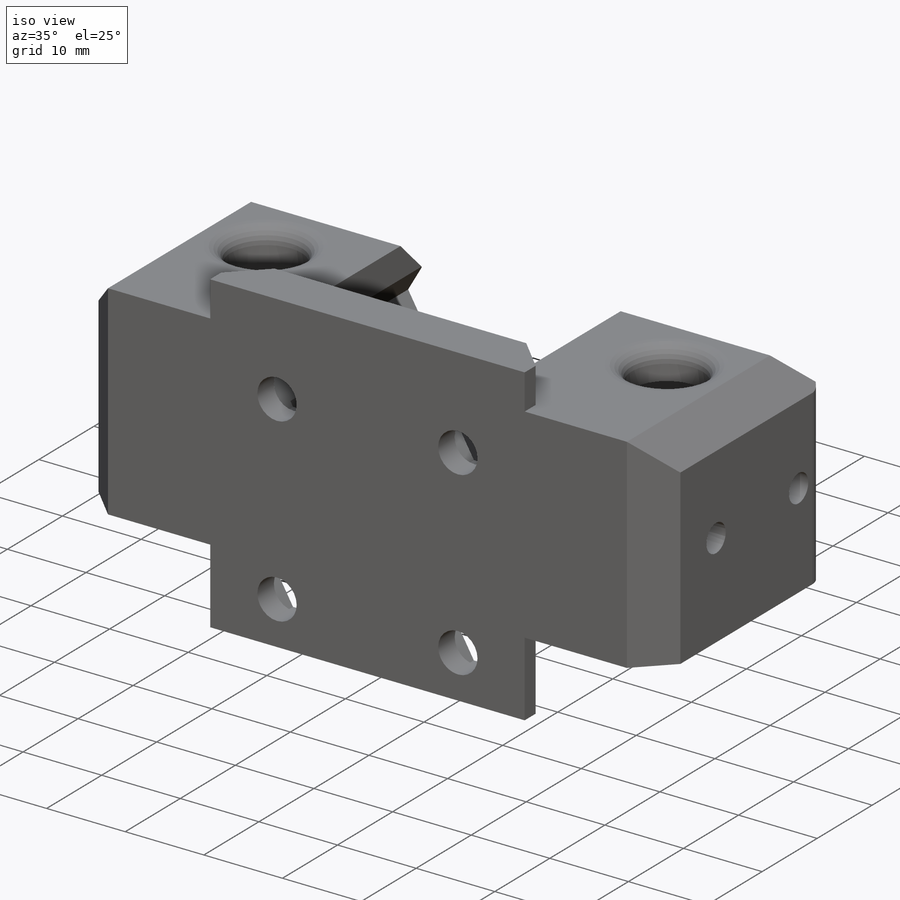
[diagram: iso view]
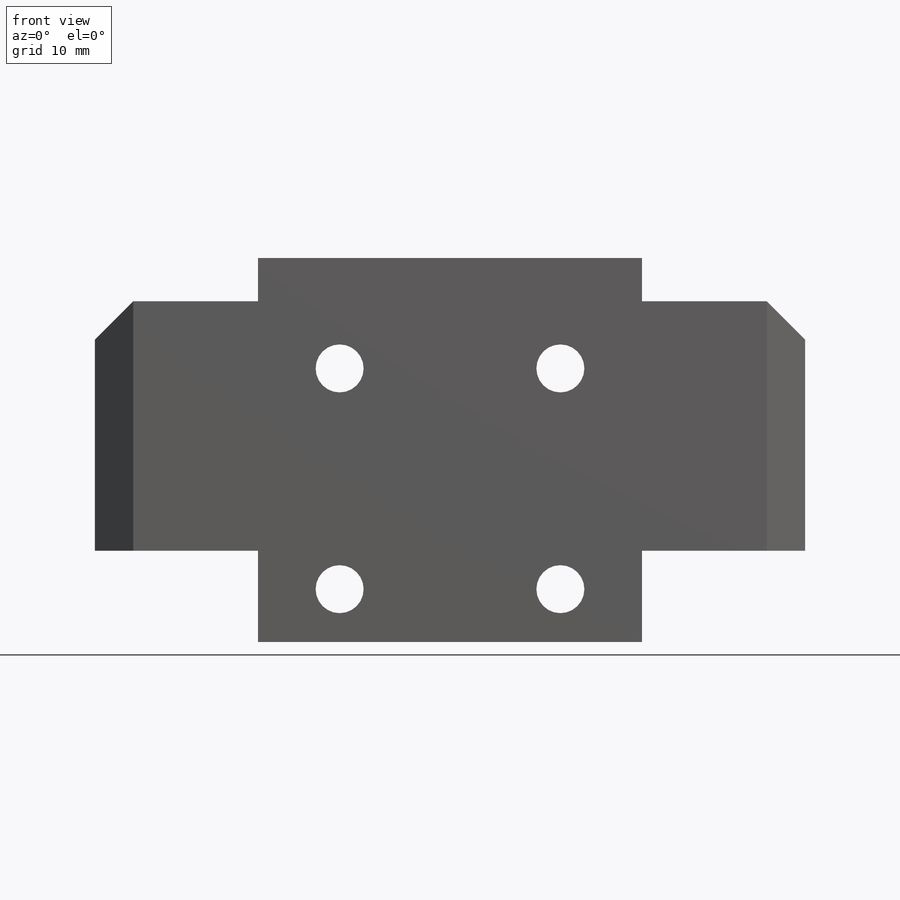
[diagram: front view]
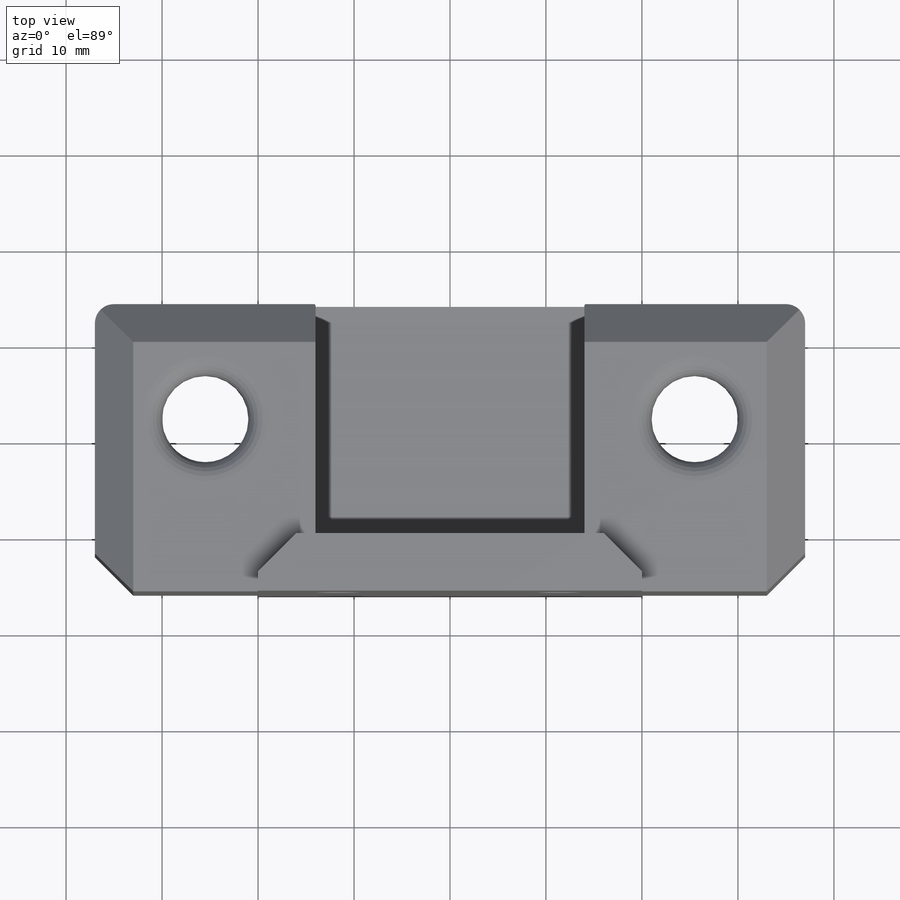
[diagram: top view]
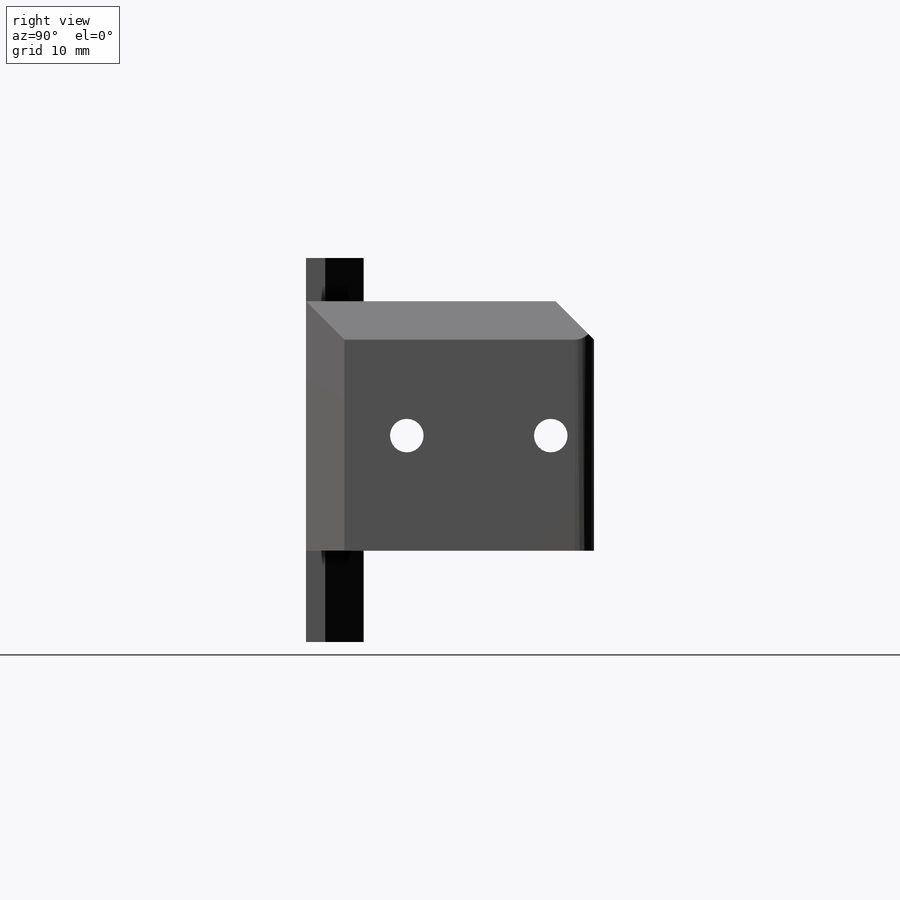
[diagram: right view]
SOLIDWORKS PART (.sldprt)
format: sldprt  version: not decoded by parser v0  size: 455,168 bytes
history: native  units: mm
features: sketch x10, cut_extrude x7, plane x4, extrude x3, material x1, chamfer x1, fillet x1, mirror x1 (+10 scaffold rows collapsed)
feature tree (38):
  scaffold x10  (default folders/planes/origin — collapsed)
  material  "Matériau <non spécifié>"
  plane  "Plan de face"
  plane  "Plan de dessus"
  plane  "Plan de droite"
  sketch  "Esquisse1"  dims[c1.D1=40.0mm c1.D2=20.0mm c2.D1=40.0mm c2.D2=40.0mm]
  extrude  "Boss.-Extru.1"  Depth=6mm
  plane  "Plan1"  Offset=9.5mm
  sketch  "Esquisse2"  dims[D1=30.0mm D2=37.0mm D3=20.0mm]
  extrude  "Boss.-Extru.2"  Depth=6mm
  sketch  "Esquisse3"  dims[D1=23.0mm D2=27.0mm D3=2.0mm]
  extrude  "Boss.-Extru.3"  Depth=20mm
  sketch  "Esquisse4"  dims[D1=18.5mm D2=12.5mm D3=25.0mm]
  cut_extrude  "Enlèv. mat.-Extru.1"  Depth=8mm
  sketch  "Esquisse5"  dims[D1=16.5mm]
  cut_extrude  "Enlèv. mat.-Extru.2"  Depth=14mm
  sketch  "Esquisse6"  dims[D1=9.0mm]
  cut_extrude  "Enlèv. mat.-Extru.3"  Depth=4mm
  sketch  "Esquisse9"  dims[c1.D2=3.5mm c1.D1=15.0mm c1.D3=10.5mm c1.D4=4.0mm c2.D3=12.0mm]
  cut_extrude  "Enlèv. mat.-Extru.5"  [1 undecoded]
  sketch  "Esquisse11"  dims[D1=6.0mm]
  cut_extrude  "Enlèv. mat.-Extru.7"  Depth=2.5mm
  chamfer  "Chanfrein1"  Distance=4mm Angle=45deg
  fillet  "Congé2"  Radius=2mm
  mirror  "Symétrie1"
  sketch  "Esquisse10"  dims[D3=5.0mm D1=23.0mm D2=23.0mm D4=23.0mm]
  cut_extrude  "Enlèv. mat.-Extru.6"  [1 undecoded]
  sketch  "Esquisse12"  dims[D1=7.5mm]
  cut_extrude  "Enlèv. mat.-Extru.8"  Depth=3mm
decode coverage: 20 of 23 modeling features carry decoded parameters
note: 2 parameter values undecoded
note: suppression state not decoded; provenance and decode notes live in map.json
